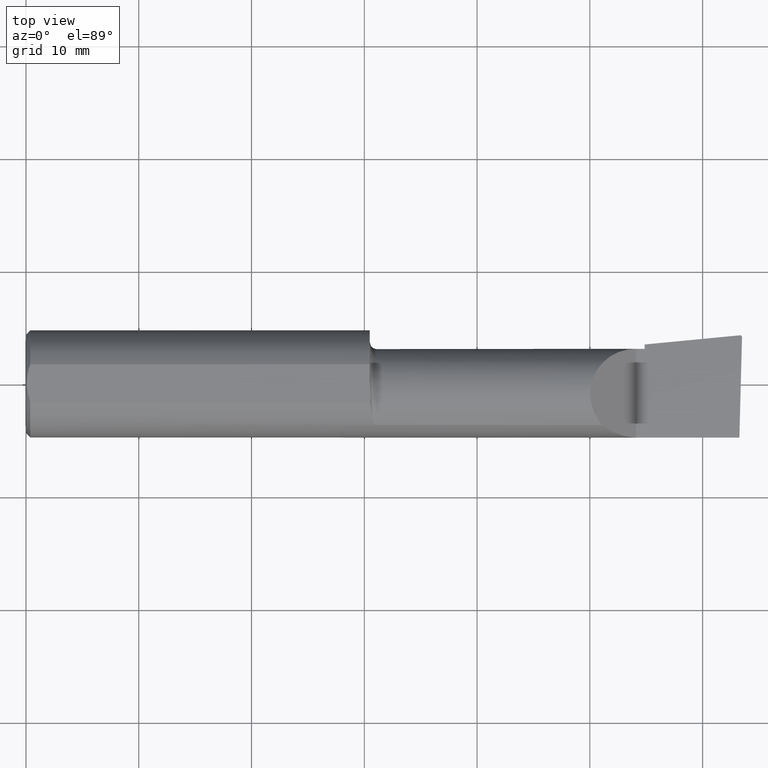
[diagram: clean part render]
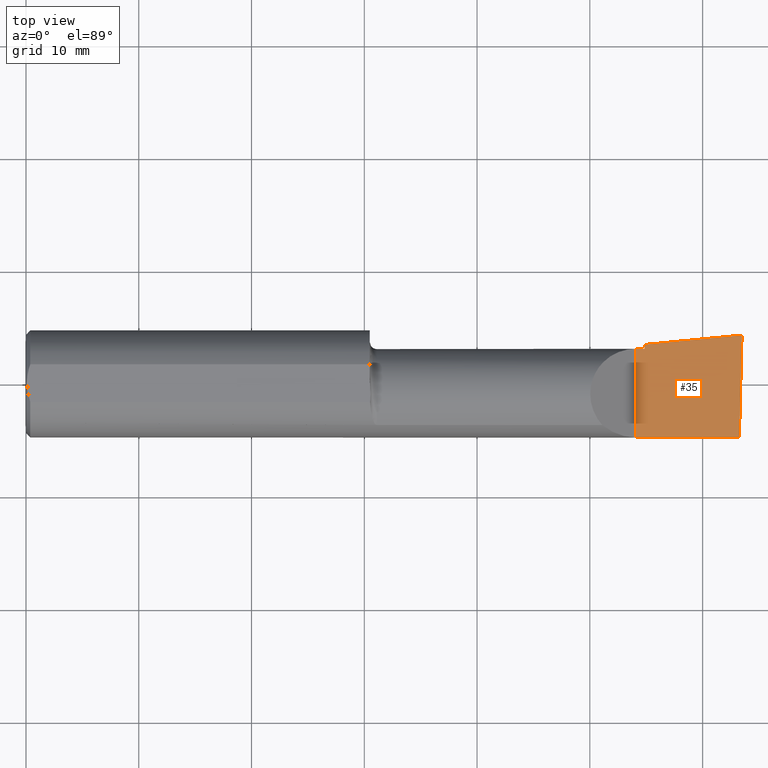
[diagram: same view with one face highlighted and labeled with its STEP entity id]
A machine part, top view. The second image highlights one B-rep face of the part: STEP entity #35.
In plain terms, the highlighted planar face has unit normal (-0, 0, -1).
Its self-contained STEP definition (entity closure, byte-faithful):
#10 = CARTESIAN_POINT ( 'NONE',  ( 0.3393181374772676895, -0.03739999999999998881, 2.916527262322785043E-16 ) ) ;
#11 = CARTESIAN_POINT ( 'NONE',  ( 2.160000000000000142, 0.1226499999999998980, 3.267291166268306182E-16 ) ) ;
#29 = VERTEX_POINT ( 'NONE', #579 ) ;
#34 = VERTEX_POINT ( 'NONE', #153 ) ;
#35 = ADVANCED_FACE ( 'NONE', ( #525 ), #475, .F. ) ;
#47 = DIRECTION ( 'NONE',  ( -1.000000000000000000, -0.000000000000000000, -0.000000000000000000 ) ) ;
#60 = VERTEX_POINT ( 'NONE', #119 ) ;
#63 = LINE ( 'NONE', #437, #369 ) ;
#71 = EDGE_CURVE ( 'NONE', #29, #134, #333, .T. ) ;
#75 = VERTEX_POINT ( 'NONE', #224 ) ;
#93 = CARTESIAN_POINT ( 'NONE',  ( 2.129999999999999893, -0.2500000000000000555, 1.065442715258197396E-16 ) ) ;
#119 = CARTESIAN_POINT ( 'NONE',  ( 2.490625440078220176, -0.1873499999999999888, 6.926778495256883227E-17 ) ) ;
#133 = CARTESIAN_POINT ( 'NONE',  ( 2.493310817358640463, 0.1699961668063687814, 6.829023555897996294E-17 ) ) ;
#134 = VERTEX_POINT ( 'NONE', #11 ) ;
#153 = CARTESIAN_POINT ( 'NONE',  ( 2.499806390372743881, 0.1632563466314176925, 6.833281667419290873E-17 ) ) ;
#155 = VECTOR ( 'NONE', #253, 39.37007874015748143 ) ;
#164 = CARTESIAN_POINT ( 'NONE',  ( 3.377502344341257155E-32, -0.1873499999999999610, 3.267291166268304703E-16 ) ) ;
#194 = ORIENTED_EDGE ( 'NONE', *, *, #71, .F. ) ;
#195 = CARTESIAN_POINT ( 'NONE',  ( 2.159999999999999698, -0.2500000000000000555, 1.034430765243970680E-16 ) ) ;
#213 = VECTOR ( 'NONE', #393, 39.37007874015748143 ) ;
#224 = CARTESIAN_POINT ( 'NONE',  ( 2.129999999999999893, -0.1873499999999999888, 1.065442715258197396E-16 ) ) ;
#233 = EDGE_CURVE ( 'NONE', #34, #520, #568, .T. ) ;
#253 = DIRECTION ( 'NONE',  ( -0.000000000000000000, 1.000000000000000000, -0.000000000000000000 ) ) ;
#258 = ORIENTED_EDGE ( 'NONE', *, *, #354, .T. ) ;
#271 = DIRECTION ( 'NONE',  ( -1.000000000000000000, 0.000000000000000000, 1.033731667140896077E-16 ) ) ;
#276 = EDGE_CURVE ( 'NONE', #60, #34, #63, .T. ) ;
#281 = CARTESIAN_POINT ( 'NONE',  ( 2.493512870449277496, 0.1699961668063687814, 3.414809992080329023E-17 ) ) ;
#298 = CARTESIAN_POINT ( 'NONE',  ( 2.493108609909186590, 0.1699864346073978183, 6.831113838336315012E-17 ) ) ;
#301 = LINE ( 'NONE', #195, #557 ) ;
#317 = DIRECTION ( 'NONE',  ( -1.033731667140896077E-16, 0.000000000000000000, -1.000000000000000000 ) ) ;
#318 = LINE ( 'NONE', #164, #637 ) ;
#333 = LINE ( 'NONE', #341, #213 ) ;
#341 = CARTESIAN_POINT ( 'NONE',  ( 1.093080678464946168E-18, 0.1226499999999998564, 3.267291166268304703E-16 ) ) ;
#354 = EDGE_CURVE ( 'NONE', #520, #503, #671, .T. ) ;
#356 = EDGE_CURVE ( 'NONE', #693, #503, #495, .T. ) ;
#369 = VECTOR ( 'NONE', #656, 39.37007874015748854 ) ;
#390 = ORIENTED_EDGE ( 'NONE', *, *, #630, .F. ) ;
#393 = DIRECTION ( 'NONE',  ( 1.000000000000000000, -6.829619984160658046E-18, 0.000000000000000000 ) ) ;
#399 = ORIENTED_EDGE ( 'NONE', *, *, #698, .F. ) ;
#402 = DIRECTION ( 'NONE',  ( 0.9953961983671787417, 0.09584575252022450864, -1.028972571603813720E-16 ) ) ;
#406 = DIRECTION ( 'NONE',  ( 6.829619984160658816E-18, 1.000000000000000000, -7.059994452165177242E-34 ) ) ;
#420 = CARTESIAN_POINT ( 'NONE',  ( 2.500000000000000000, -0.2500000000000000555, 6.829619984160658046E-17 ) ) ;
#437 = CARTESIAN_POINT ( 'NONE',  ( 2.488992440003196638, -0.2497117568972564428, 6.943408617627149937E-17 ) ) ;
#451 = CARTESIAN_POINT ( 'NONE',  ( 2.492906680581856715, 0.1699669910246658922, 6.902945873237448903E-17 ) ) ;
#464 = EDGE_LOOP ( 'NONE', ( #589, #573, #258, #478, #390, #194, #658, #399 ) ) ;
#475 = PLANE ( 'NONE',  #534 ) ;
#478 = ORIENTED_EDGE ( 'NONE', *, *, #356, .F. ) ;
#495 = LINE ( 'NONE', #10, #556 ) ;
#497 = CARTESIAN_POINT ( 'NONE',  ( 2.492906680581856715, 0.1699669910246658922, 6.902945873237448903E-17 ) ) ;
#503 = VERTEX_POINT ( 'NONE', #497 ) ;
#520 = VERTEX_POINT ( 'NONE', #565 ) ;
#525 = FACE_OUTER_BOUND ( 'NONE', #464, .T. ) ;
#531 = CARTESIAN_POINT ( 'NONE',  ( 2.499806390372743881, 0.1632563466314176925, 6.833281667419290873E-17 ) ) ;
#534 = AXIS2_PLACEMENT_3D ( 'NONE', #420, #317, #271 ) ;
#536 = CARTESIAN_POINT ( 'NONE',  ( 2.499910038027467252, 0.1672144908750946291, 6.760805322059821589E-17 ) ) ;
#552 = EDGE_CURVE ( 'NONE', #75, #29, #632, .T. ) ;
#556 = VECTOR ( 'NONE', #402, 39.37007874015748143 ) ;
#557 = VECTOR ( 'NONE', #406, 39.37007874015748143 ) ;
#565 = CARTESIAN_POINT ( 'NONE',  ( 2.493512870449277496, 0.1699961668063687814, 3.414809992080329023E-17 ) ) ;
#568 =( BOUNDED_CURVE ( )  B_SPLINE_CURVE ( 3, ( #531, #536, #601, #281 ),
 .UNSPECIFIED., .F., .F. ) 
 B_SPLINE_CURVE_WITH_KNOTS ( ( 4, 4 ),
 ( 1.953092279228168415, 3.511516179717430575 ),
 .UNSPECIFIED. ) 
 CURVE ( )  GEOMETRIC_REPRESENTATION_ITEM ( )  RATIONAL_B_SPLINE_CURVE ( ( 1.000000000000000000, 0.8076450242550399228, 0.8076450242550399228, 1.000000000000000000 ) ) 
 REPRESENTATION_ITEM ( '' )  );
#573 = ORIENTED_EDGE ( 'NONE', *, *, #233, .T. ) ;
#579 = CARTESIAN_POINT ( 'NONE',  ( 2.129999999999999893, 0.1226499999999998147, 1.065442715258197396E-16 ) ) ;
#589 = ORIENTED_EDGE ( 'NONE', *, *, #276, .T. ) ;
#601 = CARTESIAN_POINT ( 'NONE',  ( 2.497312560284787875, 0.1699961668063688647, 6.787656272032839054E-17 ) ) ;
#613 = CARTESIAN_POINT ( 'NONE',  ( 2.493512870449277496, 0.1699961668063687814, 3.414809992080329023E-17 ) ) ;
#630 = EDGE_CURVE ( 'NONE', #134, #693, #301, .T. ) ;
#632 = LINE ( 'NONE', #93, #155 ) ;
#637 = VECTOR ( 'NONE', #47, 39.37007874015748143 ) ;
#644 = CARTESIAN_POINT ( 'NONE',  ( 2.159999999999999698, 0.1379117236128416801, 3.350782304728822623E-16 ) ) ;
#656 = DIRECTION ( 'NONE',  ( 0.02617694830779887516, 0.9996573249755592583, -2.665804247636325387E-18 ) ) ;
#658 = ORIENTED_EDGE ( 'NONE', *, *, #552, .F. ) ;
#671 =( BOUNDED_CURVE ( )  B_SPLINE_CURVE ( 3, ( #613, #133, #298, #451 ),
 .UNSPECIFIED., .F., .F. ) 
 B_SPLINE_CURVE_WITH_KNOTS ( ( 4, 4 ),
 ( 3.511516179717430575, 3.604018710825947824 ),
 .UNSPECIFIED. ) 
 CURVE ( )  GEOMETRIC_REPRESENTATION_ITEM ( )  RATIONAL_B_SPLINE_CURVE ( ( 1.000000000000000000, 0.9992870672494019724, 0.9992870672494019724, 1.000000000000000000 ) ) 
 REPRESENTATION_ITEM ( '' )  );
#693 = VERTEX_POINT ( 'NONE', #644 ) ;
#698 = EDGE_CURVE ( 'NONE', #60, #75, #318, .T. ) ;